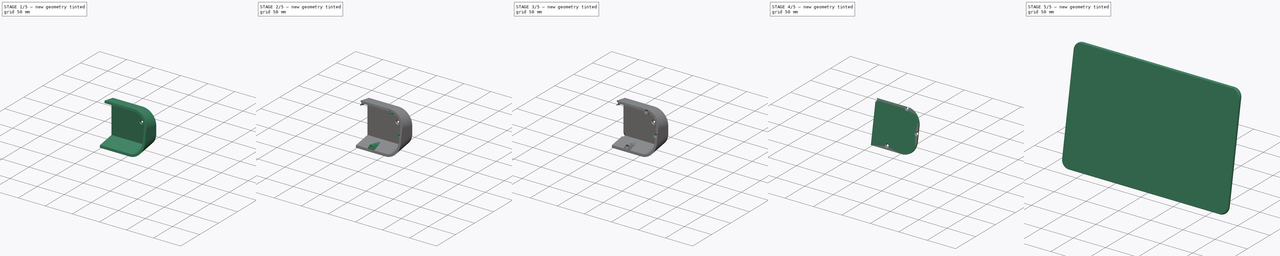
[diagram: build sequence overview — one tinted view per stage of 5, left to right]
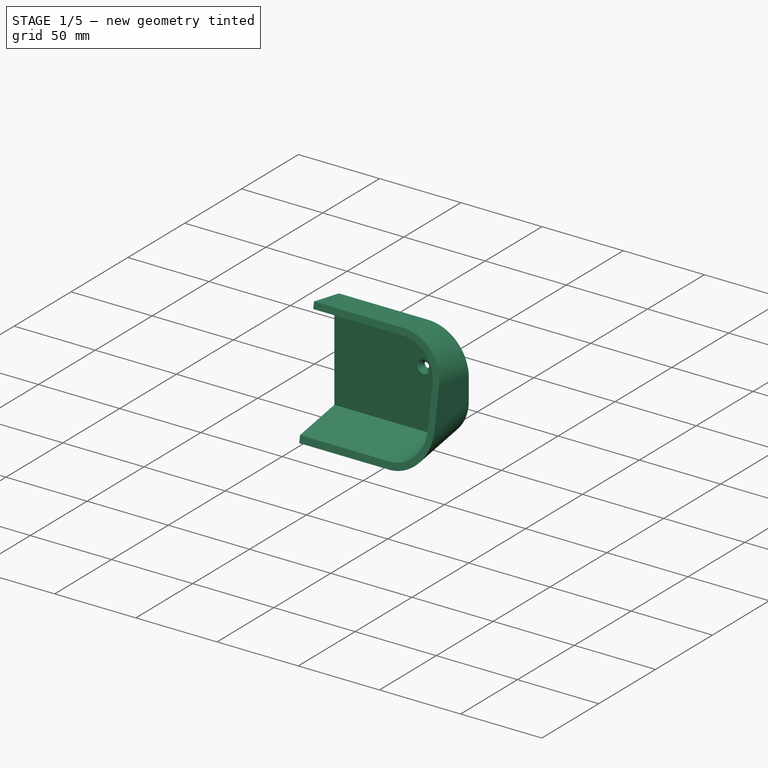
[diagram: stage 1 of 5 — iso view after this stage's code; geometry added in this stage tinted green]
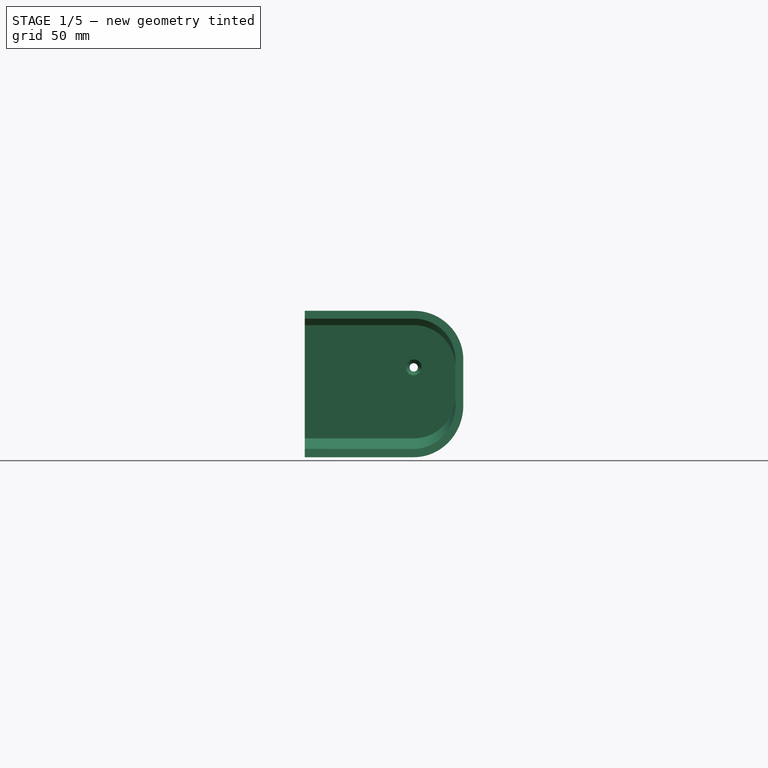
[diagram: stage 1 of 5 — front view after this stage's code; geometry added in this stage tinted green]
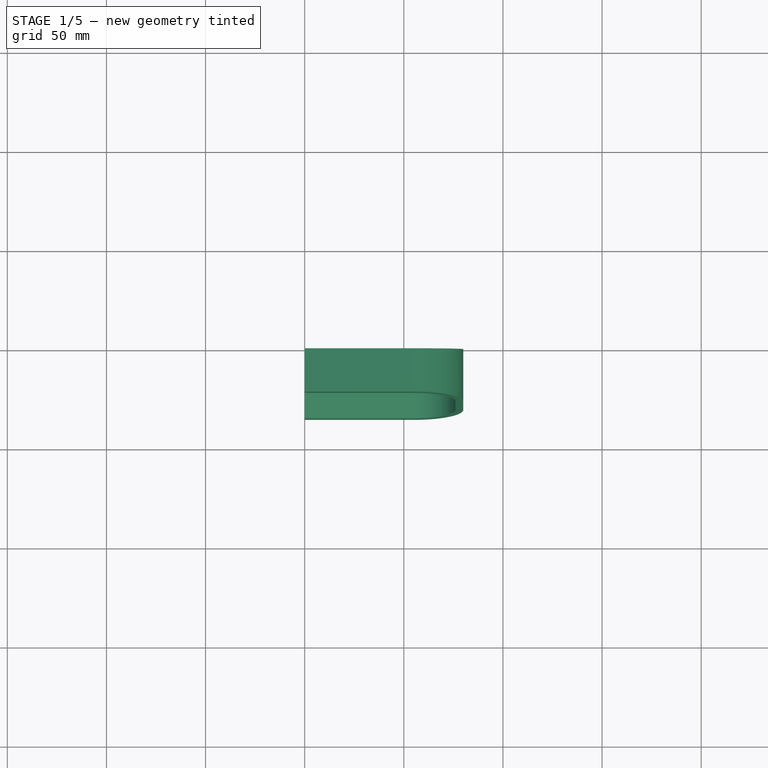
[diagram: stage 1 of 5 — top view after this stage's code; geometry added in this stage tinted green]
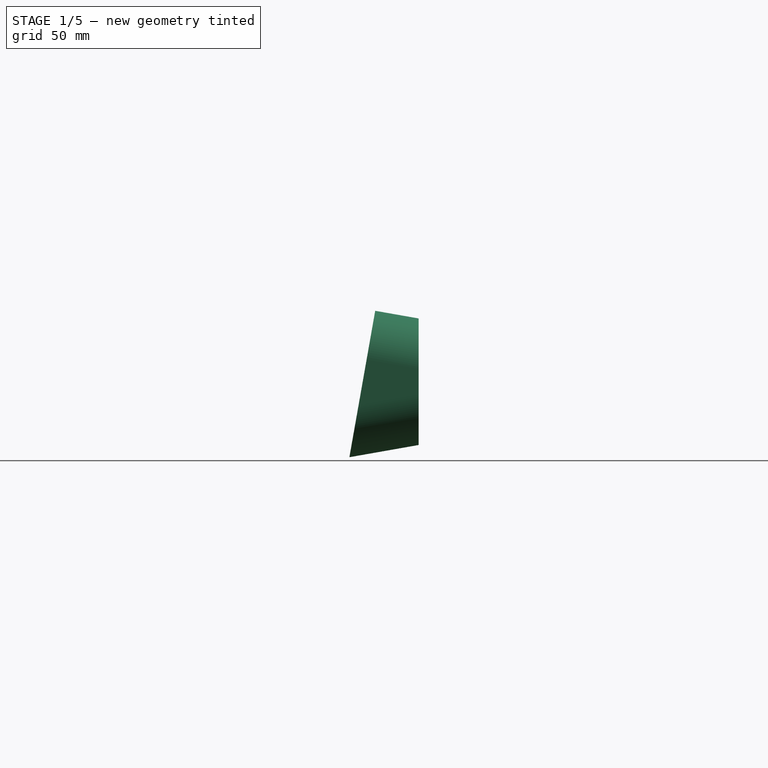
[diagram: stage 1 of 5 — right view after this stage's code; geometry added in this stage tinted green]
FCSTD DOCUMENT  (FreeCAD 0.21R33668 +7 (Git))
Label: wall-mount-proto
License: All rights reserved
LicenseURL: http://en.wikipedia.org/wiki/All_rights_reserved
objects: Sketcher::SketchObject×15, PartDesign::Pocket×6, PartDesign::Pad×4, PartDesign::Hole×4, PartDesign::Fillet×3, PartDesign::SubShapeBinder×3, PartDesign::Mirrored×2, PartDesign::Body×2, Part::FeaturePython×1, PartDesign::Thickness×1, PartDesign::SubtractiveLoft×1, PartDesign::ShapeBinder×1
note: 62 computed .brp shape members not serialized (recipe doc carries the construction recipe); baked Part::Feature solids carry a one-line shape summary decoded from their .brp

FEATURE [Sketcher::SketchObject] Sketch003
  FullyConstrained = true
  MapMode = 5
  Placement = pos=(0,0,0) rot=(0.57735,0.57735,0.57735;2.0944rad)
  Support = -> [YZ_Plane001]
  sketch-geometry (7):
    g0: LineSegment StartX=0 StartY=31.922 StartZ=0 EndX=0 EndY=-31.922 EndZ=0
    g1: LineSegment StartX=0 StartY=-31.922 StartZ=0 EndX=-34.9155 EndY=-38.0785 EndZ=0
    g2: LineSegment StartX=-34.9155 StartY=-38.0785 StartZ=0 EndX=-21.8919 EndY=35.7821 EndZ=0
    g3: LineSegment StartX=-21.8919 StartY=35.7821 StartZ=0 EndX=0 EndY=31.922 EndZ=0
    g4: GeomPoint X=-33.179 Y=-28.2304 Z=0
    g5: GeomPoint X=-8 Y=114.567 Z=0
    g6: GeomPoint X=-37.5202 Y=-52.8506 Z=0
  constraints (18):
    c: PointOnObject(g0,g-2)
    c: Coincident(g1,g0)
    c: Coincident(g2,g1)
    c: Coincident(g3,g2)
    c: Coincident(g3,g0)
    c: Symmetric(g0,g0,g-1)
    c: Angle(g3,g0) = 1.74533
    c: Perpendicular(g3,g2)
    c: PointOnObject(g4,g2)
    c: PointOnObject(g5,g2)
    c: Distance(g5,g4) = 145
    c: Distance(g1,g4) = 10
    c: DistanceX(g5,g-1) = 8
    c: Distance(g2) = 75
    c: Angle(g0,g1) = 1.74533
    c: PointOnObject(g6,g2)
    c: Distance(g5,g6) = 170
    c: Distance(g4,g6) = 25
FEATURE [PartDesign::Pad] Pad
  Direction = (1,-2e-16,3e-16)
  Length = 80
  Length2 = 10
  Placement = pos=(0,0,0) rot=(0.57735,0.57735,0.57735;2.0944rad)
  Profile = -> Sketch003
  ReferenceAxis = -> Sketch003 [N_Axis]
  Type = 0
FEATURE [PartDesign::Fillet] Fillet001
  Base = -> Pad [Edge12,Edge7]
  BaseFeature = -> Pad
  Placement = pos=(0,0,0) rot=(0.57735,0.57735,0.57735;2.0944rad)
  Radius = 25
  SupportTransform = false
  UseAllEdges = false
FEATURE [PartDesign::Thickness] Thickness001
  Base = -> Fillet001 [Face4,Face8]
  BaseFeature = -> Fillet001
  Intersection = false
  Join = 0
  Mode = 0
  Reversed = true
  SupportTransform = false
  Value = 4
FEATURE [Sketcher::SketchObject] Sketch004
  ExternalGeometry = -> [Thickness001]
  FullyConstrained = true
  MapMode = 5
  Placement = pos=(-1.8e-15,-4,9e-16) rot=(1,0,0;1.5708rad)
  Support = -> [Thickness001]
  sketch-geometry (1):
    g0: Circle CenterX=55 CenterY=7.2416 CenterZ=0 NormalX=0 NormalY=0 NormalZ=1 AngleXU=0 Radius=2
  constraints (2):
    c: Coincident(g0,g-3)
    c: Diameter(g0) = 4
FEATURE [PartDesign::Hole] Hole001
  BaseFeature = -> Thickness001
  CustomThreadClearance = 0
  Depth = 218.831
  DepthType = 1
  Diameter = 4.2
  DrillForDepth = false
  DrillPoint = 1
  DrillPointAngle = 118
  HoleCutCountersinkAngle = 90
  HoleCutCustomValues = false
  HoleCutDepth = 0
  HoleCutDiameter = 8
  HoleCutType = 2
  ModelThread = false
  Profile = -> Sketch004
  Tapered = false
  TaperedAngle = 90
  ThreadClass = 0
  ThreadDepth = 218.831
  ThreadDepthType = 0
  ThreadDirection = 0
  ThreadFit = 2
  ThreadSize = 10
  ThreadType = 1
  Threaded = false
  UseCustomThreadClearance = false
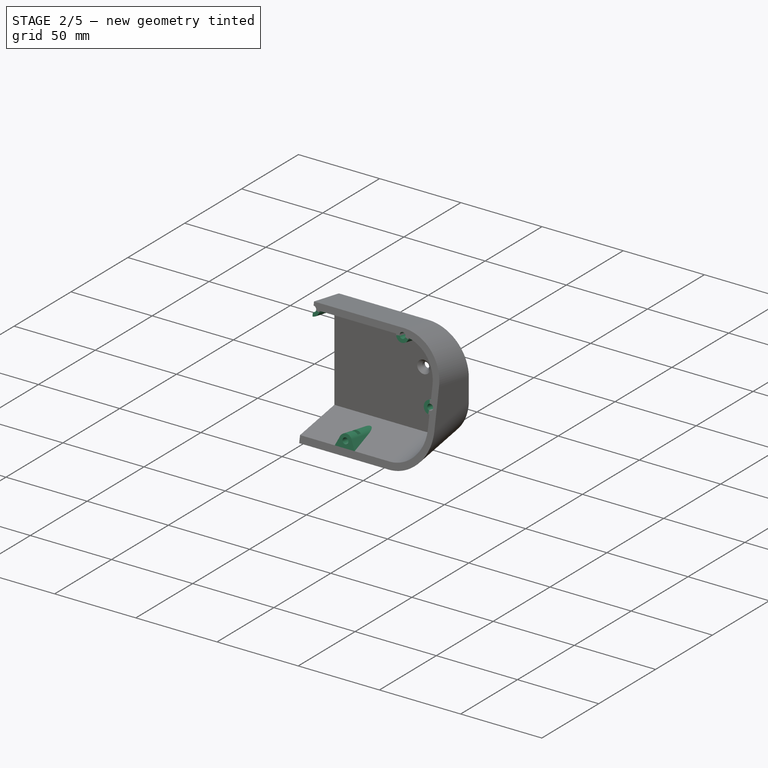
[diagram: stage 2 of 5 — iso view after this stage's code; geometry added in this stage tinted green]
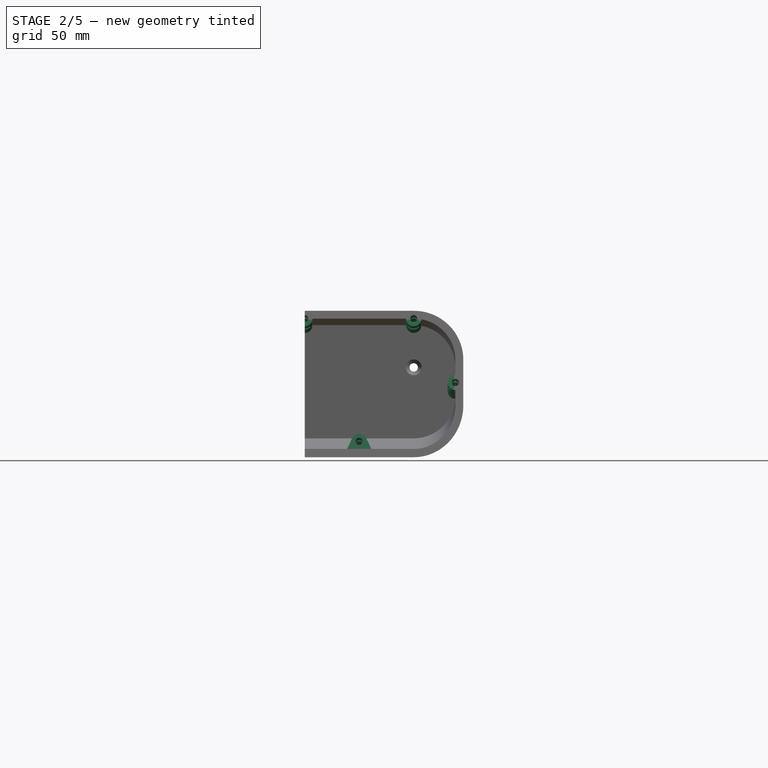
[diagram: stage 2 of 5 — front view after this stage's code; geometry added in this stage tinted green]
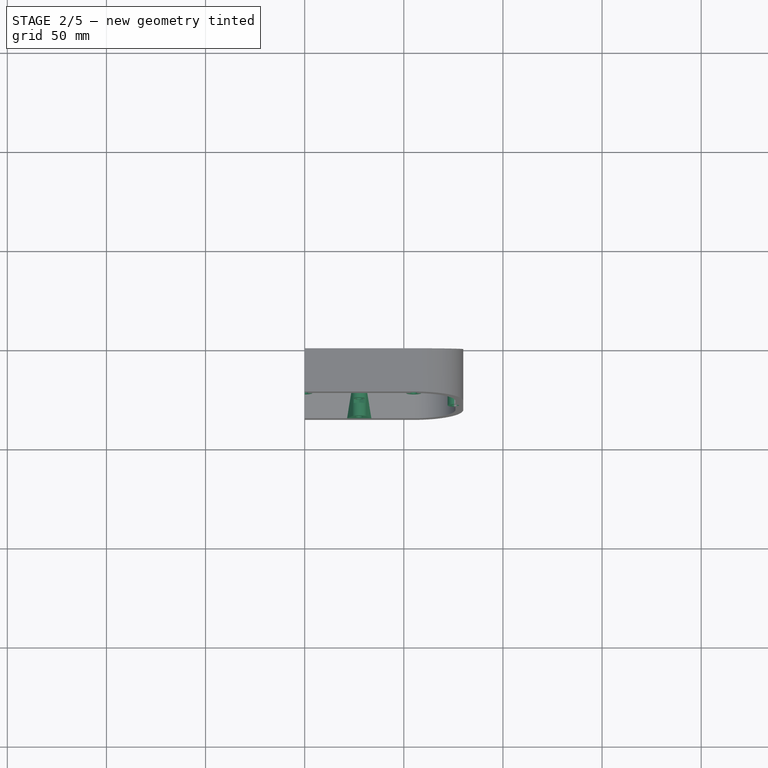
[diagram: stage 2 of 5 — top view after this stage's code; geometry added in this stage tinted green]
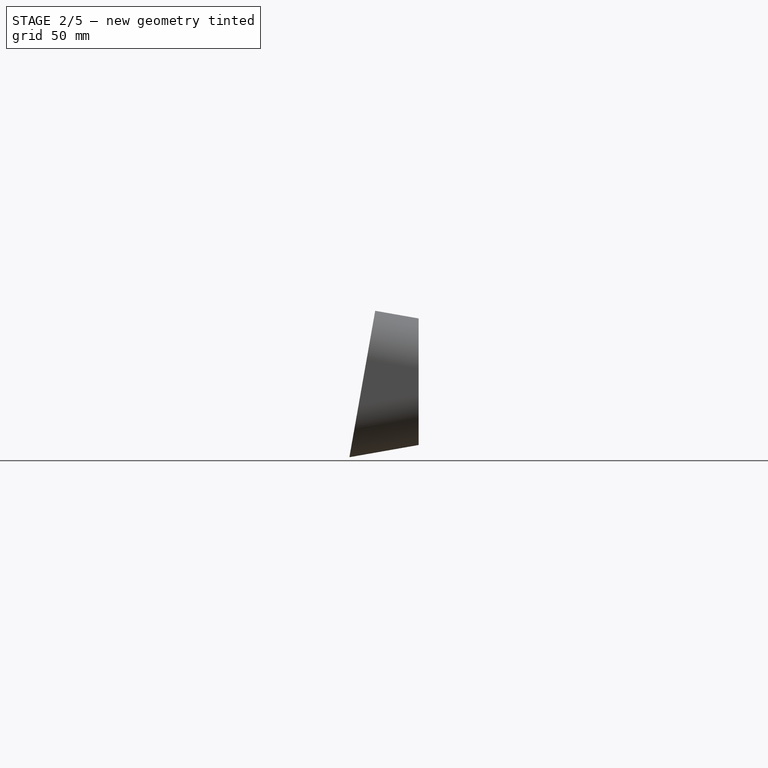
[diagram: stage 2 of 5 — right view after this stage's code; geometry added in this stage tinted green]
FEATURE [Sketcher::SketchObject] Sketch005
  ExternalGeometry = -> [Hole001]
  FullyConstrained = true
  MapMode = 5
  Placement = pos=(-1.36e-14,-27.3508,4.82269) rot=(1,0,0;1.39626rad)
  Support = -> [Hole001]
  sketch-geometry (4):
    g0: ArcOfCircle CenterX=-5.4e-15 CenterY=27.437 CenterZ=0 NormalX=0 NormalY=0 NormalZ=1 AngleXU=0 Radius=3.9 StartAngle=4.71239 EndAngle=7.85398
    g1: Circle CenterX=55 CenterY=27.437 CenterZ=0 NormalX=0 NormalY=0 NormalZ=1 AngleXU=0 Radius=3.9
    g2: Circle CenterX=76 CenterY=-5.26079 CenterZ=0 NormalX=0 NormalY=0 NormalZ=1 AngleXU=0 Radius=3.9
    g3: LineSegment StartX=-7e-16 StartY=31.337 StartZ=0 EndX=8e-16 EndY=23.537 EndZ=0
  constraints (10):
    c: Coincident(g0,g-3)
    c: Coincident(g1,g-4)
    c: Symmetric(g-5,g-5,g2)
    c: Equal(g0,g1)
    c: Equal(g0,g2)
    c: Diameter(g0) = 7.8
    c: PointOnObject(g3,g-2)
    c: PointOnObject(g3,g-2)
    c: Coincident(g0,g3)
    c: Coincident(g0,g3)
FEATURE [PartDesign::Pad] Pad001
  BaseFeature = -> Hole001
  Direction = (-5e-16,-0.984808,0.173648)
  Length = 10
  Length2 = 10
  Profile = -> Sketch005
  ReferenceAxis = -> Sketch005 [N_Axis]
  Refine = true
  Type = 3
  UpToFace = -> Hole001 [Face11]
FEATURE [Sketcher::SketchObject] Sketch010
  ExternalGeometry = -> [Pad001]
  FullyConstrained = true
  MapMode = 5
  Placement = pos=(-1.31e-14,-27.3508,4.82269) rot=(1,0,0;1.39626rad)
  Support = -> [Pad001]
  sketch-geometry (6):
    g0: ArcOfCircle CenterX=27.5 CenterY=-35.4063 CenterZ=0 NormalX=0 NormalY=0 NormalZ=1 AngleXU=0 Radius=3.9 StartAngle=0.436332 EndAngle=2.70526
    g1: LineSegment StartX=2.13e-14 StartY=-39.3063 StartZ=0 EndX=27.5 EndY=-35.4063 EndZ=0
    g2: LineSegment StartX=27.5 StartY=-35.4063 StartZ=0 EndX=55 EndY=-39.3063 EndZ=0
    g3: LineSegment StartX=23.9654 StartY=-33.7581 StartZ=0 EndX=21.3782 EndY=-39.3063 EndZ=0
    g4: LineSegment StartX=31.0346 StartY=-33.7581 StartZ=0 EndX=33.6218 EndY=-39.3063 EndZ=0
    g5: LineSegment StartX=33.6218 StartY=-39.3063 StartZ=0 EndX=21.3782 EndY=-39.3063 EndZ=0
  constraints (15):
    c: Coincident(g1,g-3)
    c: Coincident(g1,g0)
    c: Coincident(g2,g0)
    c: Coincident(g2,g-3)
    c: Equal(g1,g2)
    c: Tangent(g0,g-3)
    c: Equal(g-4,g0)
    c: PointOnObject(g3,g-3)
    c: PointOnObject(g4,g-3)
    c: Coincident(g5,g4)
    c: Coincident(g5,g3)
    c: Tangent(g3,g0) = -1.5708
    c: Tangent(g4,g0) = 1.5708
    c: Angle(g4,g5) = 1.13446
    c: Angle(g5,g3) = 1.13446
FEATURE [PartDesign::Pad] Pad002
  BaseFeature = -> Pad001
  Direction = (-5e-16,-0.984808,0.173648)
  Length = 10
  Length2 = 10
  Profile = -> Sketch010
  ReferenceAxis = -> Sketch010 [N_Axis]
  Reversed = true
  Type = 2
FEATURE [Sketcher::SketchObject] Sketch007
  ExternalGeometry = -> [Pad002]
  FullyConstrained = true
  MapMode = 5
  Placement = pos=(-1.3e-14,-28.2191,4.97578) rot=(1,0,0;1.39626rad)
  sketch-geometry (3):
    g0: Circle CenterX=-9.9e-15 CenterY=27.437 CenterZ=0 NormalX=0 NormalY=0 NormalZ=1 AngleXU=0 Radius=1.8
    g1: Circle CenterX=55 CenterY=27.437 CenterZ=0 NormalX=0 NormalY=0 NormalZ=1 AngleXU=0 Radius=1.8
    g2: Circle CenterX=76 CenterY=-5.26079 CenterZ=0 NormalX=0 NormalY=0 NormalZ=1 AngleXU=0 Radius=1.8
  constraints (6):
    c: Equal(g0,g1)
    c: Equal(g0,g2)
    c: Diameter(g0) = 3.6
    c: Coincident(g1,g-3)
    c: Coincident(g-4,g0)
    c: Coincident(g2,g-5)
FEATURE [PartDesign::Pocket] Pocket
  BaseFeature = -> Pad002
  Direction = (0,0.984808,-0.173648)
  Length = 0
  Length2 = 5
  Profile = -> Sketch007
  ReferenceAxis = -> Sketch007 [N_Axis]
  Type = 3
  UpToFace = -> Pad002 [Face2]
FEATURE [Sketcher::SketchObject] Sketch008
  ExternalGeometry = -> [Pocket]
  FullyConstrained = true
  MapMode = 5
  Placement = pos=(-1.3e-14,-28.2191,4.97578) rot=(1,0,0;1.39626rad)
  sketch-geometry (1):
    g0: Circle CenterX=27.5 CenterY=-35.4063 CenterZ=0 NormalX=0 NormalY=0 NormalZ=1 AngleXU=0 Radius=1.8
  constraints (2):
    c: Coincident(g-3,g0)
    c: Equal(g-4,g0)
FEATURE [PartDesign::Pocket] Pocket001
  BaseFeature = -> Pocket
  Direction = (0,0.984808,-0.173648)
  Length = 0
  Length2 = 5
  Offset = -2
  Profile = -> Sketch008
  ReferenceAxis = -> Sketch008 [N_Axis]
  Type = 3
  UpToFace = -> Pocket [Face16]
FEATURE [Sketcher::SketchObject] Sketch009
  ExternalGeometry = -> [Pocket001]
  FullyConstrained = true
  MapMode = 5
  Placement = pos=(-1.3e-14,-28.2191,4.97578) rot=(1,0,0;1.39626rad)
  sketch-geometry (40):
    g0: LineSegment StartX=2.68468 StartY=28.987 StartZ=0 EndX=-9.8e-15 EndY=30.537 EndZ=0
    g1: LineSegment StartX=-9.8e-15 StartY=30.537 StartZ=0 EndX=-2.68468 EndY=28.987 EndZ=0
    g2: LineSegment StartX=-2.68468 StartY=28.987 StartZ=0 EndX=-2.68468 EndY=25.887 EndZ=0
    g3: LineSegment StartX=-2.68468 StartY=25.887 StartZ=0 EndX=-9.3e-15 EndY=24.337 EndZ=0
    g4: LineSegment StartX=-9.3e-15 StartY=24.337 StartZ=0 EndX=2.68468 EndY=25.887 EndZ=0
    g5: LineSegment StartX=2.68468 StartY=25.887 StartZ=0 EndX=2.68468 EndY=28.987 EndZ=0
    g6: Circle CenterX=-9.9e-15 CenterY=27.437 CenterZ=0 NormalX=0 NormalY=0 NormalZ=1 AngleXU=0 Radius=3.1
    g7: LineSegment StartX=52.3153 StartY=28.987 StartZ=0 EndX=52.3153 EndY=25.887 EndZ=0
    g8: LineSegment StartX=52.3153 StartY=25.887 StartZ=0 EndX=55 EndY=24.337 EndZ=0
    g9: LineSegment StartX=55 StartY=24.337 StartZ=0 EndX=57.6847 EndY=25.887 EndZ=0
    g10: LineSegment StartX=57.6847 StartY=25.887 StartZ=0 EndX=57.6847 EndY=28.987 EndZ=0
    g11: LineSegment StartX=57.6847 StartY=28.987 StartZ=0 EndX=55 EndY=30.537 EndZ=0
    g12: LineSegment StartX=55 StartY=30.537 StartZ=0 EndX=52.3153 EndY=28.987 EndZ=0
    g13: Circle CenterX=55 CenterY=27.437 CenterZ=0 NormalX=0 NormalY=0 NormalZ=1 AngleXU=0 Radius=3.1
    g14: LineSegment StartX=79.1 StartY=-5.26079 StartZ=0 EndX=77.55 EndY=-2.57611 EndZ=0
    g15: LineSegment StartX=77.55 StartY=-2.57611 StartZ=0 EndX=74.45 EndY=-2.57611 EndZ=0
    g16: LineSegment StartX=74.45 StartY=-2.57611 StartZ=0 EndX=72.9 EndY=-5.26079 EndZ=0
    g17: LineSegment StartX=72.9 StartY=-5.26079 StartZ=0 EndX=74.45 EndY=-7.94546 EndZ=0
    g18: LineSegment StartX=74.45 StartY=-7.94546 StartZ=0 EndX=77.55 EndY=-7.94546 EndZ=0
    g19: LineSegment StartX=77.55 StartY=-7.94546 StartZ=0 EndX=79.1 EndY=-5.26079 EndZ=0
    g20: Circle CenterX=76 CenterY=-5.26079 CenterZ=0 NormalX=0 NormalY=0 NormalZ=1 AngleXU=0 Radius=3.1
    g21: LineSegment StartX=30.1847 StartY=-33.8563 StartZ=0 EndX=27.5 EndY=-32.3063 EndZ=0
    g22: LineSegment StartX=27.5 StartY=-32.3063 StartZ=0 EndX=24.8153 EndY=-33.8563 EndZ=0
    g23: LineSegment StartX=24.8153 StartY=-33.8563 StartZ=0 EndX=24.8153 EndY=-36.9563 EndZ=0
    g24: LineSegment StartX=24.8153 StartY=-36.9563 StartZ=0 EndX=27.5 EndY=-38.5063 EndZ=0
    g25: LineSegment StartX=27.5 StartY=-38.5063 StartZ=0 EndX=30.1847 EndY=-36.9563 EndZ=0
    g26: LineSegment StartX=30.1847 StartY=-36.9563 StartZ=0 EndX=30.1847 EndY=-33.8563 EndZ=0
    g27: Circle CenterX=27.5 CenterY=-35.4063 CenterZ=0 NormalX=0 NormalY=0 NormalZ=1 AngleXU=0 Radius=3.1
    g28: LineSegment StartX=52.3153 StartY=28.987 StartZ=0 EndX=52.3153 EndY=18.987 EndZ=0
    g29: LineSegment StartX=57.6847 StartY=28.987 StartZ=0 EndX=57.6847 EndY=18.987 EndZ=0
    g30: LineSegment StartX=52.3153 StartY=18.987 StartZ=0 EndX=57.6847 EndY=18.987 EndZ=0
    g31: LineSegment StartX=2.68468 StartY=28.987 StartZ=0 EndX=2.68468 EndY=18.987 EndZ=0
    g32: LineSegment StartX=-2.68468 StartY=28.987 StartZ=0 EndX=-2.68468 EndY=18.987 EndZ=0
    g33: LineSegment StartX=-2.68468 StartY=18.987 StartZ=0 EndX=2.68468 EndY=18.987 EndZ=0
    g34: LineSegment StartX=24.8153 StartY=-36.9563 StartZ=0 EndX=24.8153 EndY=-26.9563 EndZ=0
    g35: LineSegment StartX=24.8153 StartY=-26.9563 StartZ=0 EndX=30.1847 EndY=-26.9563 EndZ=0
    g36: LineSegment StartX=30.1847 StartY=-36.9563 StartZ=0 EndX=30.1847 EndY=-26.9563 EndZ=0
    g37: LineSegment StartX=77.55 StartY=-2.57611 StartZ=0 EndX=67.55 EndY=-2.57611 EndZ=0
    g38: LineSegment StartX=67.55 StartY=-2.57611 StartZ=0 EndX=67.55 EndY=-7.94546 EndZ=0
    g39: LineSegment StartX=67.55 StartY=-7.94546 StartZ=0 EndX=77.55 EndY=-7.94546 EndZ=0
  constraints (96):
    c: Coincident(g0,g1)
    c: Coincident(g1,g2)
    c: Coincident(g2,g3)
    c: Coincident(g3,g4)
    c: Coincident(g4,g5)
    c: Coincident(g5,g0)
    c: Equal(g0, g1-g5) x5
    c: PointOnObject(g0,g6)
    c: PointOnObject(g1,g6)
    c: PointOnObject(g2,g6)
    c: PointOnObject(g3,g6)
    c: PointOnObject(g4,g6)
    c: PointOnObject(g5,g6)
    c: Coincident(g7,g8)
    c: Coincident(g8,g9)
    c: Coincident(g9,g10)
    c: Coincident(g10,g11)
    c: Coincident(g11,g12)
    c: Coincident(g12,g7)
    c: Equal(g7, g8-g12) x5
    c: PointOnObject(g7,g13)
    c: PointOnObject(g8,g13)
    c: PointOnObject(g9,g13)
    c: PointOnObject(g10,g13)
    c: PointOnObject(g11,g13)
    c: PointOnObject(g12,g13)
    c: Coincident(g14,g15)
    c: Coincident(g15,g16)
    c: Coincident(g16,g17)
    c: Coincident(g17,g18)
    c: Coincident(g18,g19)
    c: Coincident(g19,g14)
    c: Equal(g14, g15-g19) x5
    c: PointOnObject(g14,g20)
    c: PointOnObject(g15,g20)
    c: PointOnObject(g16,g20)
    c: PointOnObject(g17,g20)
    c: PointOnObject(g18,g20)
    c: PointOnObject(g19,g20)
    c: Coincident(g21,g22)
    c: Coincident(g22,g23)
    c: Coincident(g23,g24)
    c: Coincident(g24,g25)
    c: Coincident(g25,g26)
    c: Coincident(g26,g21)
    c: Equal(g21, g22-g26) x5
    c: PointOnObject(g21,g27)
    c: PointOnObject(g22,g27)
    c: PointOnObject(g23,g27)
    c: PointOnObject(g24,g27)
    c: PointOnObject(g25,g27)
    c: PointOnObject(g26,g27)
    c: Equal(g27,g20)
    c: Equal(g27,g13)
    c: Equal(g27,g6)
    c: Diameter(g27) = 6.2
    c: Vertical(g5)
    c: Vertical(g7)
    c: Horizontal(g15)
    c: Vertical(g26)
    c: Coincident(g28,g7)
    c: Coincident(g29,g10)
    c: Coincident(g30,g28)
    c: Coincident(g30,g29)
    c: PointOnObject(g9,g29)
    c: PointOnObject(g7,g28)
    c: Coincident(g31,g0)
    c: Coincident(g32,g1)
    c: Coincident(g33,g32)
    c: Coincident(g33,g31)
    c: Horizontal(g33)
    c: PointOnObject(g2,g32)
    c: PointOnObject(g4,g31)
    c: Coincident(g34,g23)
    c: Coincident(g35,g34)
    c: Horizontal(g35)
    c: Coincident(g36,g25)
    c: Coincident(g36,g35)
    c: PointOnObject(g21,g36)
    c: PointOnObject(g22,g34)
    c: Coincident(g37,g14)
    c: Coincident(g38,g37)
    c: Vertical(g38)
    c: Coincident(g39,g38)
    c: Coincident(g39,g18)
    c: PointOnObject(g17,g39)
    c: PointOnObject(g15,g37)
    c: Horizontal(g30)
    c: Equal(g31,g29)
    c: Equal(g29,g39)
    c: Equal(g39,g36)
    c: Distance(g31) = 10
    c: Coincident(g-6,g27)
    c: Coincident(g20,g-5)
    c: Coincident(g13,g-4)
    c: Coincident(g6,g-3)
FEATURE [PartDesign::Pocket] Pocket002
  BaseFeature = -> Pocket001
  Direction = (0,0.984808,-0.173648)
  Length = 10.2
  Length2 = -7.4
  Profile = -> Sketch009
  ReferenceAxis = -> Sketch009 [N_Axis]
  Type = 4
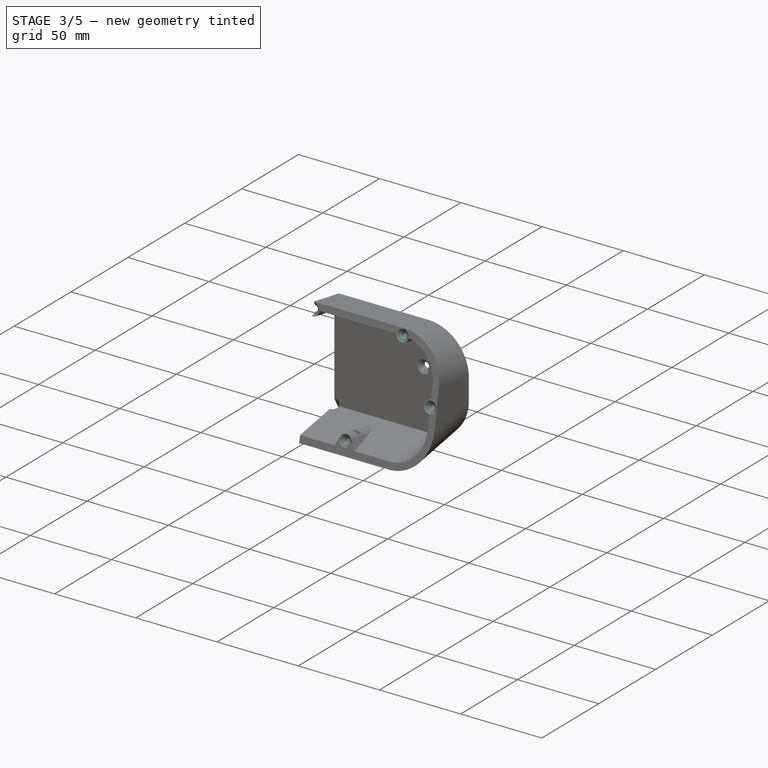
[diagram: stage 3 of 5 — iso view after this stage's code; geometry added in this stage tinted green]
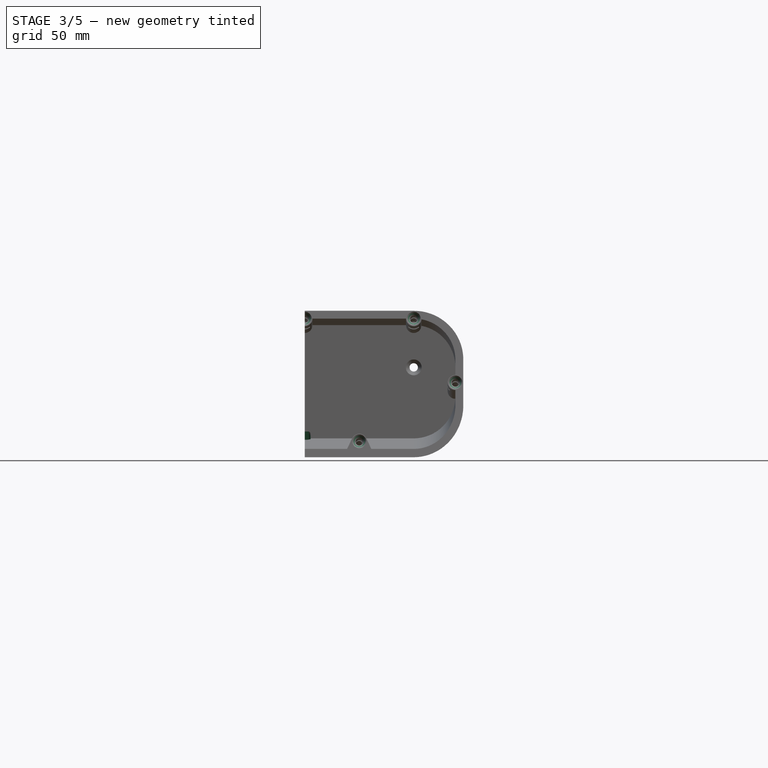
[diagram: stage 3 of 5 — front view after this stage's code; geometry added in this stage tinted green]
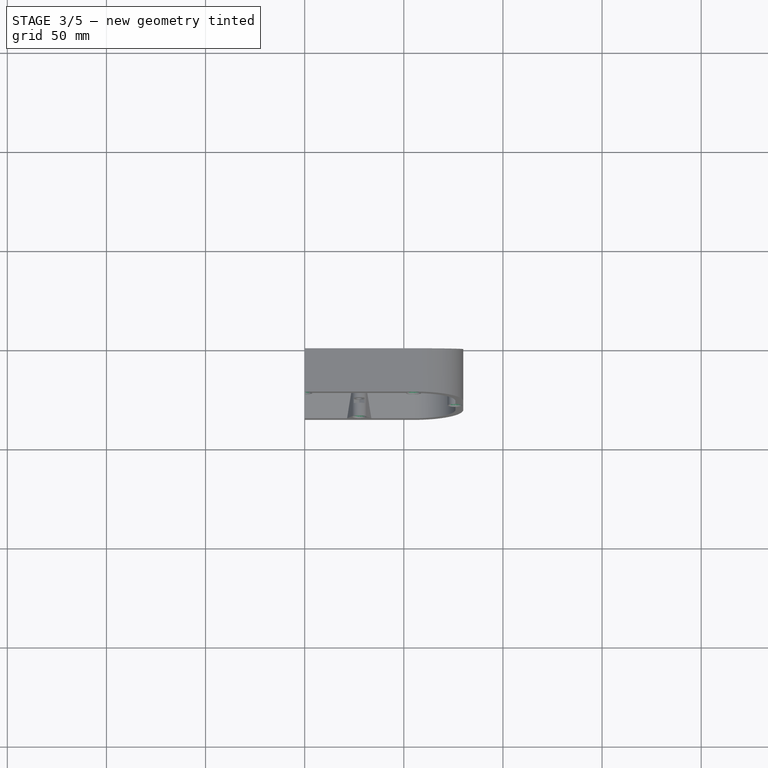
[diagram: stage 3 of 5 — top view after this stage's code; geometry added in this stage tinted green]
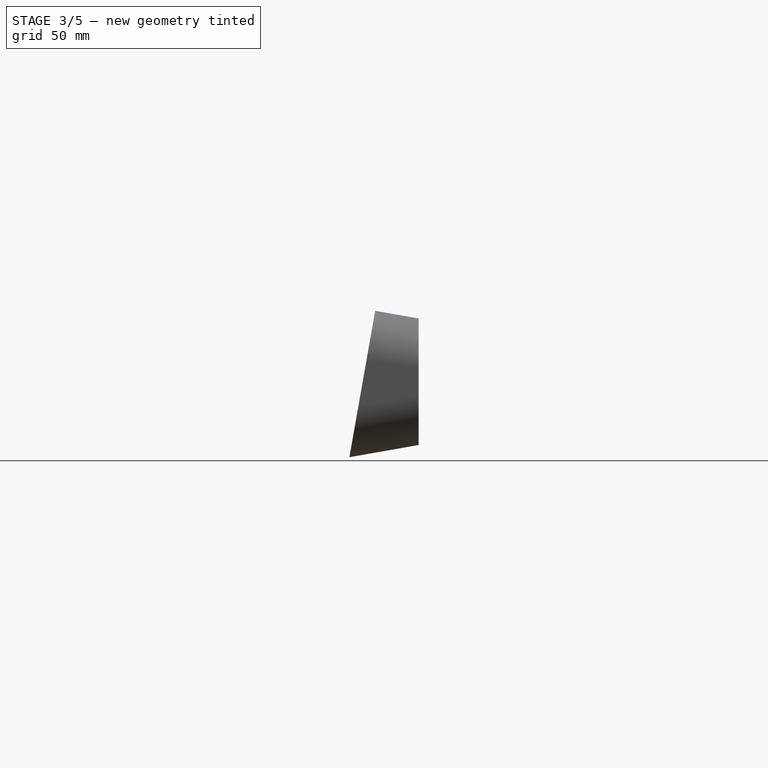
[diagram: stage 3 of 5 — right view after this stage's code; geometry added in this stage tinted green]
FEATURE [Sketcher::SketchObject] Sketch011
  AttachmentOffset = pos=(0,0,5) rot=(0,0,1;0rad)
  ExternalGeometry = -> [Pocket002]
  FullyConstrained = true
  MapMode = 5
  Placement = pos=(7.9e-15,3.89614,-22.0961) rot=(1,0,0;0.174533rad)
  Support = -> [Pocket002]
  sketch-geometry (4):
    g0: ArcOfCircle CenterX=0 CenterY=-11.8996 CenterZ=0 NormalX=0 NormalY=0 NormalZ=1 AngleXU=0 Radius=3 StartAngle=4.71239 EndAngle=6.28319
    g1: LineSegment StartX=3 StartY=-11.8996 StartZ=0 EndX=3 EndY=-8.89959 EndZ=0
    g2: LineSegment StartX=0 StartY=-8.89959 StartZ=0 EndX=3 EndY=-8.89959 EndZ=0
    g3: LineSegment StartX=0 StartY=-8.89959 StartZ=0 EndX=-6e-16 EndY=-14.8996 EndZ=0
  constraints (11):
    c: PointOnObject(g0,g-2)
    c: Tangent(g0,g-3)
    c: PointOnObject(g1,g-3)
    c: Vertical(g1)
    c: Tangent(g1,g0) = -1.5708
    c: Coincident(g2,g-3)
    c: Coincident(g2,g1)
    c: Coincident(g3,g2)
    c: Coincident(g3,g0)
    c: PointOnObject(g0,g-2)
    c: Diameter(g0) = 6
FEATURE [Sketcher::SketchObject] Sketch012
  ExternalGeometry = -> [Pocket002]
  FullyConstrained = true
  MapMode = 5
  Placement = pos=(1.1e-14,5.45898,-30.9594) rot=(1,0,0;3.31613rad)
  Support = -> [Pocket002]
  sketch-geometry (4):
    g0: ArcOfCircle CenterX=0 CenterY=8.54319 CenterZ=0 NormalX=0 NormalY=0 NormalZ=1 AngleXU=0 Radius=3 StartAngle=0 EndAngle=1.5708
    g1: LineSegment StartX=3 StartY=8.54319 StartZ=0 EndX=3 EndY=5.54319 EndZ=0
    g2: LineSegment StartX=2e-16 StartY=5.54319 StartZ=0 EndX=2e-16 EndY=11.5432 EndZ=0
    g3: LineSegment StartX=2e-16 StartY=5.54319 StartZ=0 EndX=3 EndY=5.54319 EndZ=0
  constraints (11):
    c: PointOnObject(g0,g-2)
    c: PointOnObject(g0,g-2)
    c: PointOnObject(g1,g-3)
    c: Vertical(g1)
    c: Coincident(g2,g-3)
    c: Coincident(g2,g0)
    c: Coincident(g3,g2)
    c: Coincident(g3,g1)
    c: Diameter(g0) = 6
    c: Tangent(g1,g0) = 1.5708
    c: Tangent(g0,g3)
FEATURE [PartDesign::SubtractiveLoft] SubtractiveLoft
  BaseFeature = -> Pocket002
  Closed = false
  Profile = -> Sketch011
  Refine = true
  Ruled = false
  Sections = -> [Sketch012]
FEATURE [PartDesign::Fillet] Fillet002
  Base = -> SubtractiveLoft [Edge24]
  BaseFeature = -> SubtractiveLoft
  Radius = 1
  SupportTransform = false
  UseAllEdges = false
FEATURE [PartDesign::Hole] Hole003
  BaseFeature = -> Fillet002
  CustomThreadClearance = 0
  Depth = 3.1
  DepthType = 0
  Diameter = 3.6
  DrillForDepth = false
  DrillPoint = 1
  DrillPointAngle = 118
  HoleCutCountersinkAngle = 90
  HoleCutCustomValues = false
  HoleCutDepth = 0
  HoleCutDiameter = 7
  HoleCutType = 2
  ModelThread = false
  Profile = -> Fillet002 [Edge95,Edge96,Edge97]
  Reversed = true
  Tapered = false
  TaperedAngle = 90
  ThreadClass = 0
  ThreadDepth = 3.1
  ThreadDepthType = 0
  ThreadDirection = 0
  ThreadFit = 2
  ThreadSize = 9
  ThreadType = 1
  Threaded = false
  UseCustomThreadClearance = false
FEATURE [Sketcher::SketchObject] Sketch014
  ExternalGeometry = -> [Hole003]
  FullyConstrained = true
  MapMode = 5
  Placement = pos=(-1.31e-14,-27.3508,4.82269) rot=(1,0,0;1.39626rad)
  Support = -> [Hole003]
  sketch-geometry (1):
    g0: Circle CenterX=-9.5e-15 CenterY=27.437 CenterZ=0 NormalX=0 NormalY=0 NormalZ=1 AngleXU=0 Radius=1.8
  constraints (2):
    c: Coincident(g0,g-3)
    c: Equal(g0,g-3)
FEATURE [PartDesign::Hole] Hole004
  BaseFeature = -> Hole003
  CustomThreadClearance = 0
  Depth = 3.1
  DepthType = 0
  Diameter = 3.6
  DrillForDepth = false
  DrillPoint = 1
  DrillPointAngle = 118
  HoleCutCountersinkAngle = 90
  HoleCutCustomValues = false
  HoleCutDepth = 0
  HoleCutDiameter = 7
  HoleCutType = 2
  ModelThread = false
  Profile = -> Sketch014
  Tapered = false
  TaperedAngle = 90
  ThreadClass = 0
  ThreadDepth = 3.1
  ThreadDepthType = 0
  ThreadDirection = 0
  ThreadFit = 2
  ThreadSize = 9
  ThreadType = 1
  Threaded = false
  UseCustomThreadClearance = false
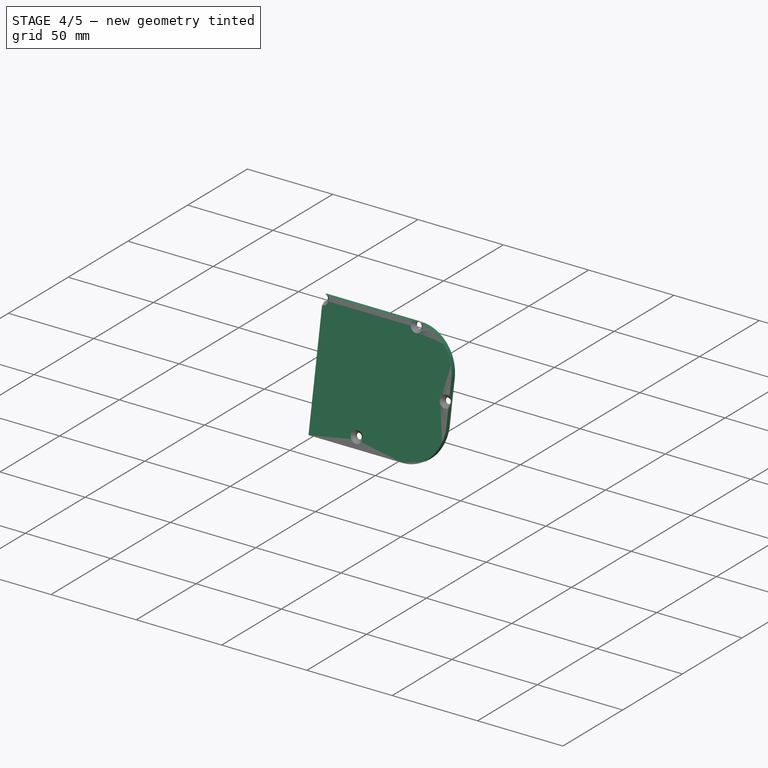
[diagram: stage 4 of 5 — iso view after this stage's code; geometry added in this stage tinted green]
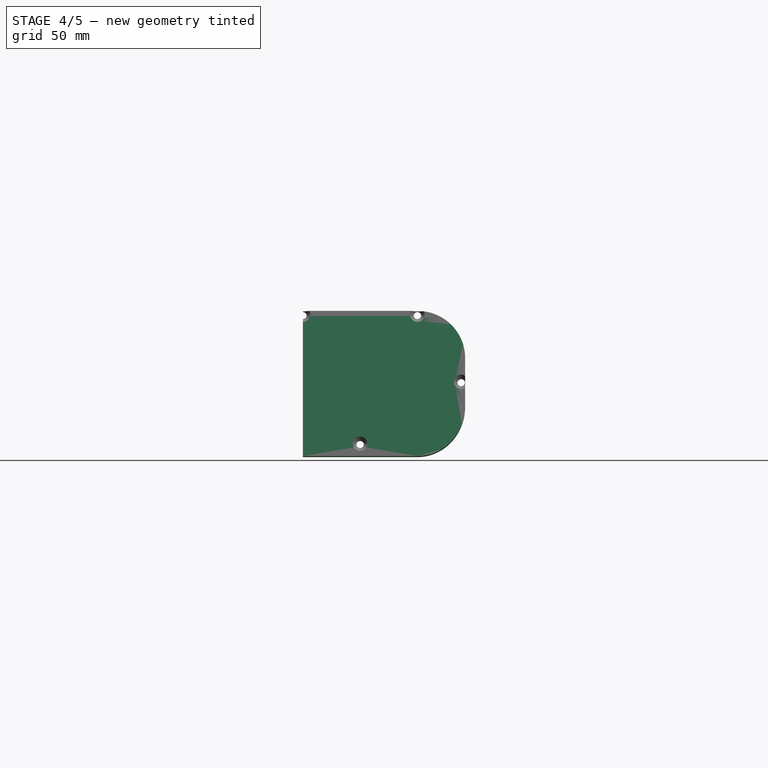
[diagram: stage 4 of 5 — front view after this stage's code; geometry added in this stage tinted green]
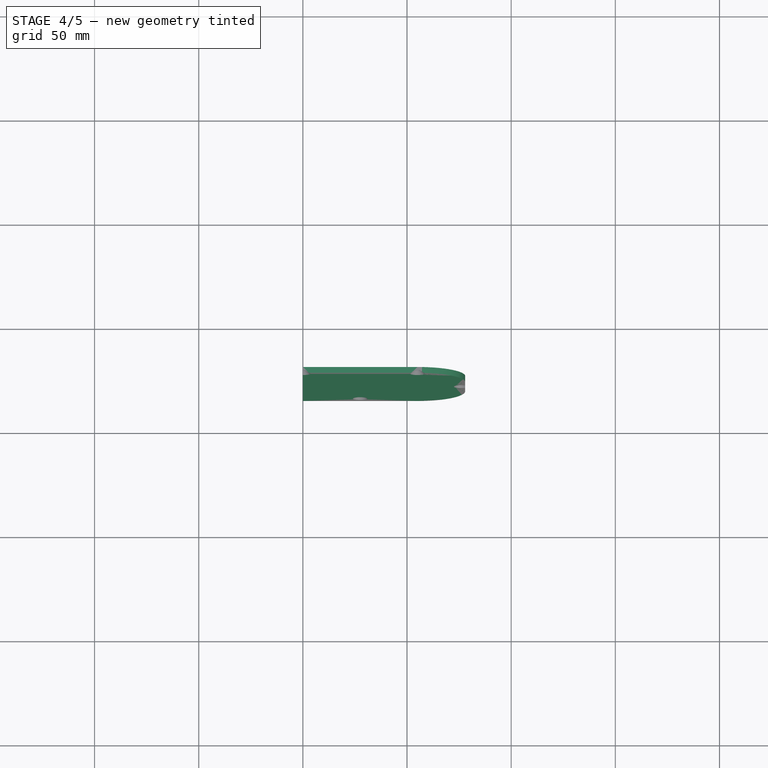
[diagram: stage 4 of 5 — top view after this stage's code; geometry added in this stage tinted green]
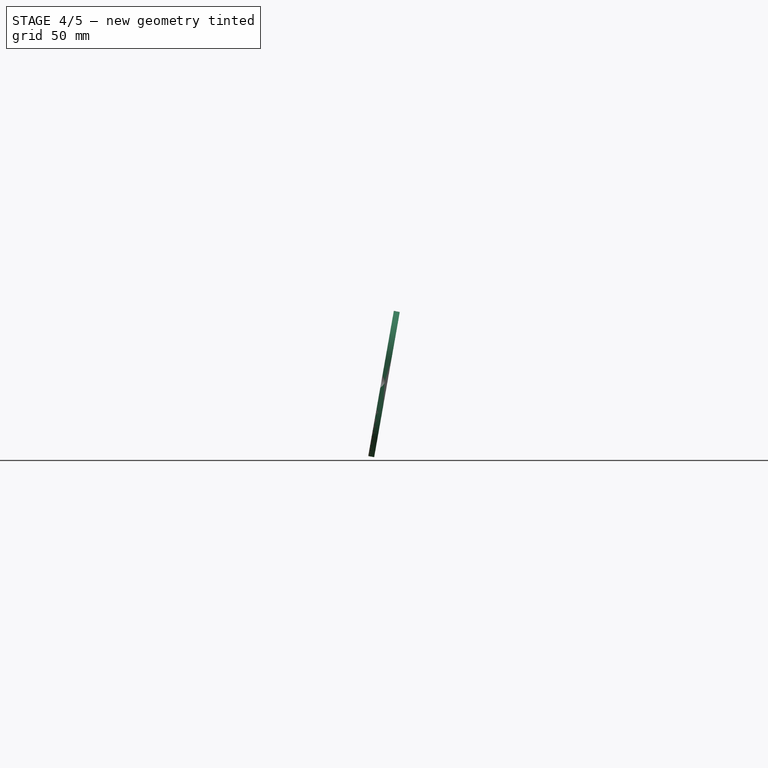
[diagram: stage 4 of 5 — right view after this stage's code; geometry added in this stage tinted green]
FEATURE [Sketcher::SketchObject] Sketch015
  ExternalGeometry = -> [Hole004]
  FullyConstrained = true
  MapMode = 5
  Placement = pos=(-1.31e-14,-27.3508,4.82269) rot=(1,0,0;1.39626rad)
  Support = -> [Hole004]
  sketch-geometry (3):
    g0: LineSegment StartX=-1.9 StartY=31.437 StartZ=0 EndX=-1.9 EndY=-43.563 EndZ=0
    g1: LineSegment StartX=-1.9 StartY=31.437 StartZ=0 EndX=-7.3e-15 EndY=31.437 EndZ=0
    g2: LineSegment StartX=-1.9 StartY=-43.563 StartZ=0 EndX=0 EndY=-43.563 EndZ=0
  constraints (8):
    c: Vertical(g0)
    c: PointOnObject(g0,g-3)
    c: Coincident(g1,g0)
    c: Coincident(g2,g0)
    c: Coincident(g2,g-3)
    c: DistanceX(g1,g1) = 1.9
    c: Coincident(g1,g-4)
    c: PointOnObject(g0,g-4)
FEATURE [PartDesign::SubShapeBinder] Binder002
  BindCopyOnChange = 0
  BindMode = 0
  ClaimChildren = false
  Context = -> Body002 [Binder002.]
  Fuse = false
  MakeFace = true
  OffsetFill = false
  OffsetIntersection = false
  OffsetJoinType = 0
  OffsetOpenResult = false
  PartialLoad = false
  Relative = true
  Support = -> [Body001[Fillet003.Edge90,Fillet003.Edge91,Fillet003.Edge107,Fillet003.Edge106,Fillet003.Edge105]]
  _Version = 2
FEATURE [PartDesign::SubShapeBinder] Binder003
  BindCopyOnChange = 0
  BindMode = 0
  ClaimChildren = false
  Context = -> Body001 [Binder003.]
  Fuse = false
  MakeFace = true
  Offset = -1.9
  OffsetFill = false
  OffsetIntersection = false
  OffsetJoinType = 0
  OffsetOpenResult = false
  PartialLoad = false
  Relative = true
  Support = -> [Hole004[Edge82,Edge95,Edge94,Edge93,Edge92],Sketch015[Edge2,Edge1,Edge3]]
  _Version = 2
FEATURE [PartDesign::Pocket] Pocket003
  BaseFeature = -> Hole004
  Direction = (-5e-16,-0.984808,0.173648)
  Length = 3.1
  Length2 = 5
  Profile = -> Binder003
  Reversed = true
  Type = 0
FEATURE [PartDesign::Fillet] Fillet003
  Base = -> Pocket003 [Edge51,Edge55,Edge46,Edge47,Edge48,Edge63,Edge64,Edge57,Edge38]
  BaseFeature = -> Pocket003
  Radius = 1.5
  SupportTransform = false
  UseAllEdges = false
FEATURE [PartDesign::ShapeBinder] ShapeBinder
  Placement = pos=(0,0,0) rot=(0.57735,0.57735,0.57735;2.0944rad)
  Support = -> [Fillet003]
  TraceSupport = false
FEATURE [Sketcher::SketchObject] Sketch019
  ExternalGeometry = -> [Fillet003]
  FullyConstrained = true
  MapMode = 5
  Placement = pos=(-1.11e-14,-24.2979,4.28438) rot=(1,0,0;1.39626rad)
  Support = -> [Fillet003]
  sketch-geometry (3):
    g0: LineSegment StartX=-1.08e-14 StartY=29.537 StartZ=0 EndX=-0.2 EndY=29.537 EndZ=0
    g1: LineSegment StartX=-0.2 StartY=29.537 StartZ=0 EndX=-0.2 EndY=-41.663 EndZ=0
    g2: LineSegment StartX=-0.2 StartY=-41.663 StartZ=0 EndX=0 EndY=-41.663 EndZ=0
  constraints (8):
    c: Coincident(g0,g-3)
    c: Coincident(g1,g0)
    c: Vertical(g1)
    c: Coincident(g2,g1)
    c: Coincident(g2,g-4)
    c: PointOnObject(g1,g-4)
    c: PointOnObject(g0,g-3)
    c: DistanceX(g0,g0) = 0.2
FEATURE [PartDesign::SubShapeBinder] Binder
  BindCopyOnChange = 0
  BindMode = 0
  ClaimChildren = false
  Context = -> Body002 [Binder.]
  Fuse = false
  MakeFace = true
  Offset = -0.2
  OffsetFill = false
  OffsetIntersection = false
  OffsetJoinType = 0
  OffsetOpenResult = false
  PartialLoad = false
  Placement = pos=(0,-0.1,0) rot=(0,0,1;0rad)
  Relative = true
  Support = -> [Fillet003[Edge92,Edge93,Edge94,Edge95,Edge96],Sketch019[Edge1,Edge2,Edge3]]
  _Version = 2
FEATURE [PartDesign::Pad] Pad004
  Direction = (5e-16,0.984808,-0.173648)
  Length = 2.9
  Length2 = 10
  Placement = pos=(0,-0.1,0) rot=(0,0,1;0rad)
  Profile = -> Binder [Face1]
  Refine = true
  Reversed = true
  Type = 0
FEATURE [Sketcher::SketchObject] Sketch020
  ExternalGeometry = -> [Binder002]
  FullyConstrained = true
  MapMode = 5
  Placement = pos=(-1.27e-14,-27.2539,4.78796) rot=(1,0,0;1.39626rad)
  Support = -> [Pad004]
  sketch-geometry (4):
    g0: Circle CenterX=0 CenterY=27.4544 CenterZ=0 NormalX=0 NormalY=0 NormalZ=1 AngleXU=0 Radius=1.8
    g1: Circle CenterX=55 CenterY=27.4544 CenterZ=0 NormalX=0 NormalY=0 NormalZ=1 AngleXU=0 Radius=1.8
    g2: Circle CenterX=76 CenterY=-5.24342 CenterZ=0 NormalX=0 NormalY=0 NormalZ=1 AngleXU=0 Radius=1.8
    g3: Circle CenterX=27.5 CenterY=-35.3889 CenterZ=0 NormalX=0 NormalY=0 NormalZ=1 AngleXU=0 Radius=1.8
  constraints (8):
    c: Coincident(g0,g-4)
    c: Tangent(g0,g-4)
    c: Coincident(g1,g-3)
    c: Tangent(g1,g-3)
    c: Coincident(g2,g-5)
    c: Tangent(g2,g-5)
    c: Coincident(g3,g-6)
    c: Tangent(g3,g-6)
FEATURE [PartDesign::Hole] Hole005
  BaseFeature = -> Pad004
  CustomThreadClearance = 0
  Depth = 203.835
  DepthType = 1
  Diameter = 3.6
  DrillForDepth = false
  DrillPoint = 1
  DrillPointAngle = 118
  HoleCutCountersinkAngle = 90
  HoleCutCustomValues = false
  HoleCutDepth = 0
  HoleCutDiameter = 7
  HoleCutType = 2
  ModelThread = false
  Placement = pos=(0,-0.1,0) rot=(0,0,1;0rad)
  Profile = -> Sketch020
  Tapered = false
  TaperedAngle = 90
  ThreadClass = 0
  ThreadDepth = 203.835
  ThreadDepthType = 0
  ThreadDirection = 0
  ThreadFit = 2
  ThreadSize = 9
  ThreadType = 1
  Threaded = false
  UseCustomThreadClearance = false
FEATURE [PartDesign::Body] Body002  label="Face Plate"
  Group = -> [Binder,Pad004,Binder002,Sketch020,Hole005,ShapeBinder,Sketch018,Pocket004,Sketch,Pocket005,Mirrored]
  Origin = -> Origin002
  Tip = -> Mirrored
FEATURE [PartDesign::Mirrored] Mirrored001
  BaseFeature = -> Fillet003
  MirrorPlane = -> Fillet003 [Face4]
  Originals = -> [Pad,Fillet001,Thickness001,Hole001,Pad001,Pad002,Pocket,Pocket001,Pocket002,SubtractiveLoft,Hole003,Hole004,Pocket003,Fillet003,Fillet002]
  Refine = true
FEATURE [PartDesign::Body] Body001  label="Base"
  Group = -> [Sketch003,Pad,Fillet001,Thickness001,Sketch004,Hole001,Sketch005,Pad001,Sketch010,Pad002,Sketch007,Pocket,Sketch008,Pocket001,Sketch009,Pocket002,Sketch011,Sketch012,SubtractiveLoft,Fillet002,Hole003,Sketch014,Hole004,Sketch015,Binder003,Pocket003,Fillet003,Sketch019,Mirrored001]
  Origin = -> Origin001
  Tip = -> Mirrored001
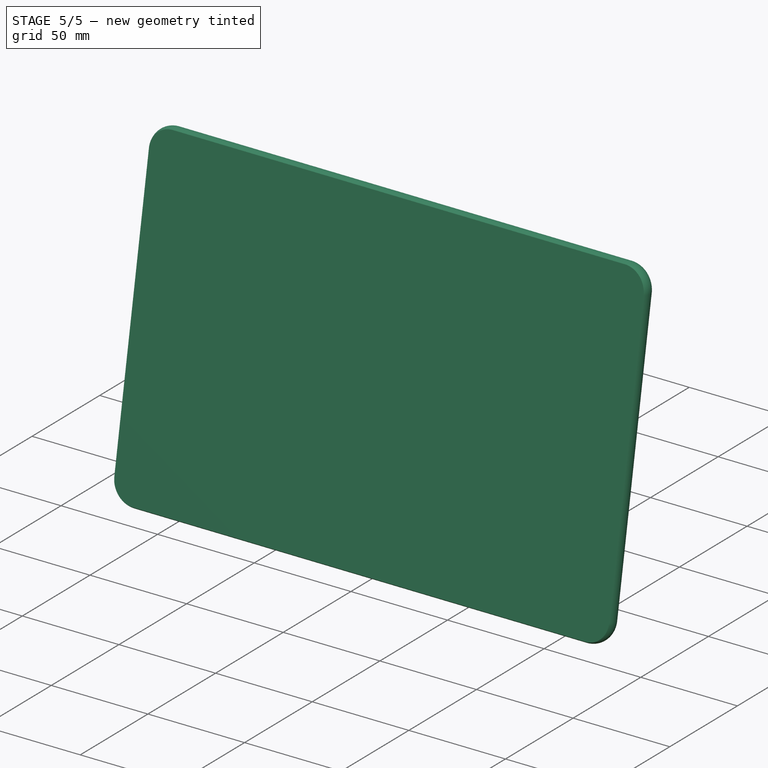
[diagram: stage 5 of 5 — iso view after this stage's code; geometry added in this stage tinted green]
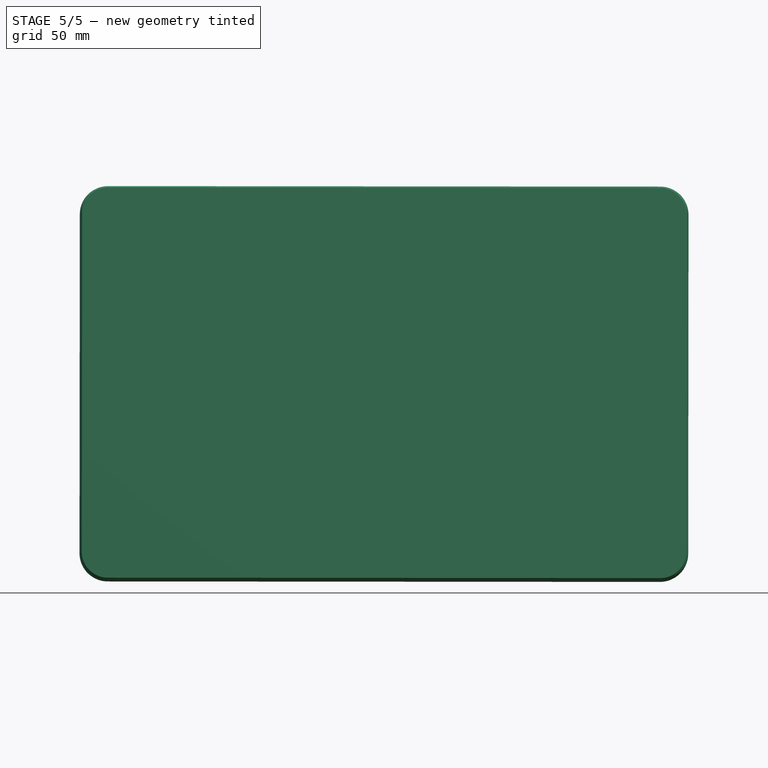
[diagram: stage 5 of 5 — front view after this stage's code; geometry added in this stage tinted green]
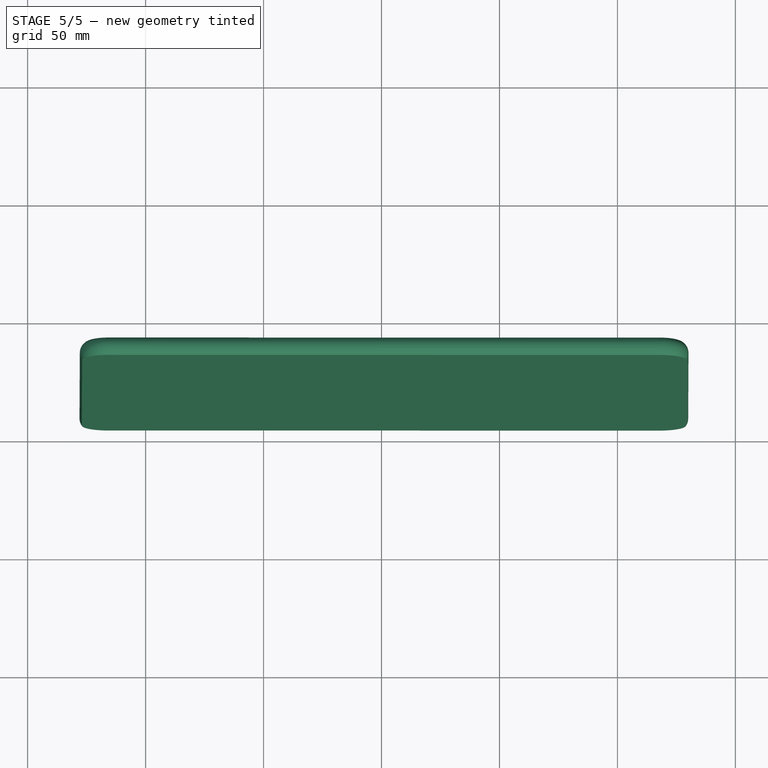
[diagram: stage 5 of 5 — top view after this stage's code; geometry added in this stage tinted green]
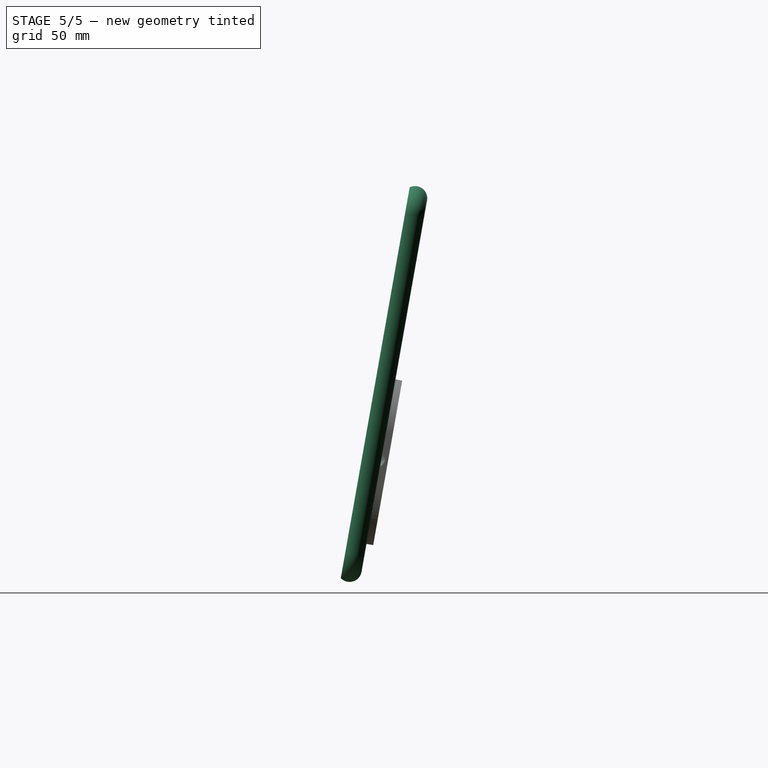
[diagram: stage 5 of 5 — right view after this stage's code; geometry added in this stage tinted green]
FEATURE [Part::FeaturePython] b_pixel_tablet_001_  label="pixel-tablet_001"  # a2plus imported part (geometry in sourceFile) (typed FeaturePython)
  Placement = pos=(1.05442,-30.7375,32.262) rot=(-0.999988,0.004927,-0.000431;0.174535rad)
  a2p_Version = 0.4.60n
  fixedPosition = true
  objectType = a2pPart
  sourceFile = ./pixel-tablet.FCStd
  subassemblyImport = false
  timeLastImport = 1.69159e+09
  updateColors = true
FEATURE [Sketcher::SketchObject] Sketch018
  ExternalGeometry = -> [ShapeBinder]
  FullyConstrained = true
  MapMode = 5
  Placement = pos=(-1.13e-14,-24.3979,4.28438) rot=(0,0.766044,0.642788;3.14159rad)
  Support = -> [Hole005]
  sketch-geometry (21):
    g0: GeomPoint X=0 Y=-33.5456 Z=0
    g1: LineSegment StartX=-47.55 StartY=-2.99564 StartZ=0 EndX=-47.55 EndY=-15.0956 EndZ=0
    g2: LineSegment StartX=-47.55 StartY=-15.0956 StartZ=0 EndX=-37.45 EndY=-15.0956 EndZ=0
    g3: LineSegment StartX=-37.45 StartY=-15.0956 StartZ=0 EndX=-37.45 EndY=-2.99564 EndZ=0
    g4: LineSegment StartX=-37.45 StartY=-2.99564 StartZ=0 EndX=-47.55 EndY=-2.99564 EndZ=0
    g5: GeomPoint X=-42.5 Y=-9.04564 Z=0
    g6: LineSegment StartX=-68.55 StartY=-0.995642 StartZ=0 EndX=-68.55 EndY=-11.0956 EndZ=0
    g7: LineSegment StartX=-68.55 StartY=-11.0956 StartZ=0 EndX=-56.45 EndY=-11.0956 EndZ=0
    g8: LineSegment StartX=-56.45 StartY=-11.0956 StartZ=0 EndX=-56.45 EndY=-0.995642 EndZ=0
    g9: LineSegment StartX=-56.45 StartY=-0.995642 StartZ=0 EndX=-68.55 EndY=-0.995642 EndZ=0
    g10: GeomPoint X=-62.5 Y=-6.04564 Z=0
    g11: LineSegment StartX=-33.55 StartY=14.7044 StartZ=0 EndX=-33.55 EndY=4.60436 EndZ=0
    g12: LineSegment StartX=-33.55 StartY=4.60436 StartZ=0 EndX=-21.45 EndY=4.60436 EndZ=0
    g13: LineSegment StartX=-21.45 StartY=4.60436 StartZ=0 EndX=-21.45 EndY=14.7044 EndZ=0
    g14: LineSegment StartX=-21.45 StartY=14.7044 StartZ=0 EndX=-33.55 EndY=14.7044 EndZ=0
    g15: GeomPoint X=-27.5 Y=9.65436 Z=0
    g16: LineSegment StartX=-55.05 StartY=17.5044 StartZ=0 EndX=-55.05 EndY=7.40436 EndZ=0
    g17: LineSegment StartX=-55.05 StartY=7.40436 StartZ=0 EndX=-42.95 EndY=7.40436 EndZ=0
    g18: LineSegment StartX=-42.95 StartY=7.40436 StartZ=0 EndX=-42.95 EndY=17.5044 EndZ=0
    g19: LineSegment StartX=-42.95 StartY=17.5044 StartZ=0 EndX=-55.05 EndY=17.5044 EndZ=0
    g20: GeomPoint X=-49 Y=12.4544 Z=0
  constraints (54):
    c: PointOnObject(g0,g-2)
    c: DistanceY(g-3,g0) = 10
    c: Coincident(g1,g2)
    c: Coincident(g2,g3)
    c: Coincident(g3,g4)
    c: Coincident(g4,g1)
    c: Horizontal(g2)
    c: Horizontal(g4)
    c: Vertical(g1)
    c: Vertical(g3)
    c: Symmetric(g2,g1,g5)
    c: Coincident(g6,g7)
    c: Coincident(g7,g8)
    c: Coincident(g8,g9)
    c: Coincident(g9,g6)
    c: Horizontal(g7)
    c: Horizontal(g9)
    c: Vertical(g6)
    c: Vertical(g8)
    c: Symmetric(g7,g6,g10)
    c: Coincident(g11,g12)
    c: Coincident(g12,g13)
    c: Coincident(g13,g14)
    c: Coincident(g14,g11)
    c: Horizontal(g12)
    c: Horizontal(g14)
    c: Vertical(g11)
    c: Vertical(g13)
    c: Symmetric(g12,g11,g15)
    c: Coincident(g16,g17)
    c: Coincident(g17,g18)
    c: Coincident(g18,g19)
    c: Coincident(g19,g16)
    c: Horizontal(g17)
    c: Horizontal(g19)
    c: Vertical(g16)
    c: Vertical(g18)
    c: Symmetric(g17,g16,g20)
    c: Equal(g1,g7)
    c: Equal(g7,g17)
    c: Equal(g17,g12)
    c: Equal(g18,g8)
    c: Equal(g8,g11)
    c: Equal(g11,g4)
    c: DistanceY(g1,g1) = 12.1
    c: DistanceX(g4,g4) = 10.1
    c: DistanceY(g0,g5) = 24.5
    c: DistanceX(g5,g0) = 42.5
    c: DistanceX(g10,g0) = 62.5
    c: DistanceY(g0,g10) = 27.5
    c: DistanceY(g0,g15) = 43.2
    c: DistanceX(g15,g0) = 27.5
    c: DistanceY(g0,g20) = 46
    c: DistanceX(g20,g0) = 49
FEATURE [PartDesign::Pocket] Pocket004
  BaseFeature = -> Hole005
  Direction = (-5e-16,-0.984808,0.173648)
  Length = 0
  Length2 = 5
  Offset = -0.2
  Placement = pos=(0,-0.1,0) rot=(0,0,1;0rad)
  Profile = -> Sketch018
  ReferenceAxis = -> Sketch018 [N_Axis]
  Type = 3
  UpToFace = -> Hole005 [Face5]
FEATURE [Sketcher::SketchObject] Sketch
  ExternalGeometry = -> [ShapeBinder]
  FullyConstrained = true
  MapMode = 5
  Placement = pos=(-1.13e-14,-24.3979,4.28438) rot=(0,0.766044,0.642788;3.14159rad)
  Support = -> [Pocket004]
  sketch-geometry (2):
    g0: Circle CenterX=-2.6 CenterY=-33.5456 CenterZ=0 NormalX=0 NormalY=0 NormalZ=1 AngleXU=0 Radius=1.5
    g1: Circle CenterX=-7.8 CenterY=-33.5456 CenterZ=0 NormalX=0 NormalY=0 NormalZ=1 AngleXU=0 Radius=1.5
  constraints (6):
    c: Horizontal(g1,g0)
    c: DistanceX(g1,g0) = 5.2
    c: DistanceX(g0,g-1) = 2.6
    c: DistanceY(g-3,g0) = 10
    c: Equal(g1,g0)
    c: Diameter(g1) = 3
FEATURE [PartDesign::Pocket] Pocket005
  BaseFeature = -> Pocket004
  Direction = (-5e-16,-0.984808,0.173648)
  Length = 5
  Length2 = 5
  Placement = pos=(0,-0.1,0) rot=(0,0,1;0rad)
  Profile = -> Sketch
  ReferenceAxis = -> Sketch [N_Axis]
  Type = 1
FEATURE [PartDesign::Mirrored] Mirrored
  BaseFeature = -> Pocket005
  MirrorPlane = -> Pocket005 [Face11]
  Originals = -> [Pad004,Hole005,Pocket004,Pocket005]
  Placement = pos=(0,-0.1,0) rot=(0,0,1;0rad)
  Refine = true
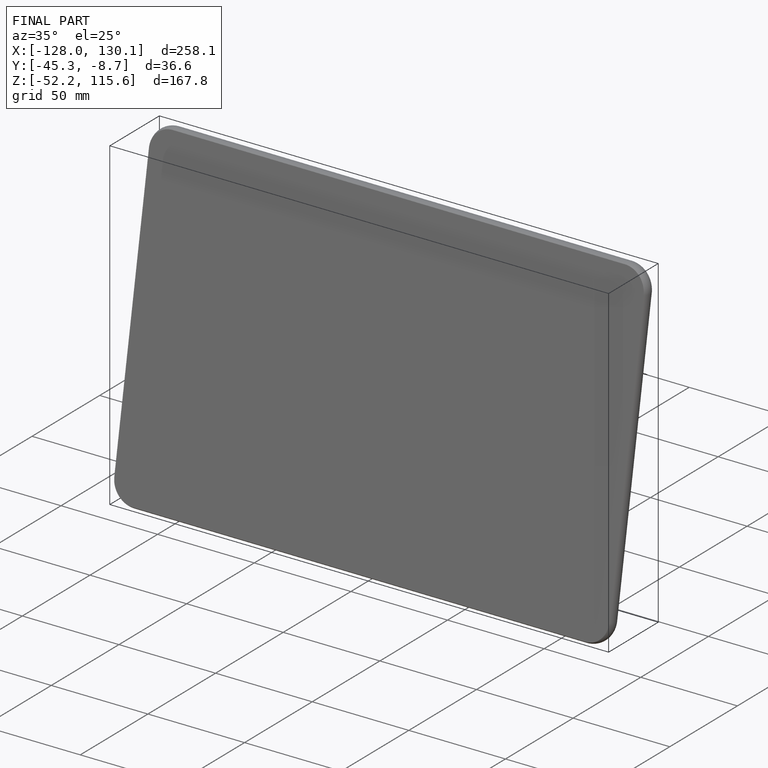
[diagram: finished part — iso view with bounding-box wireframe]
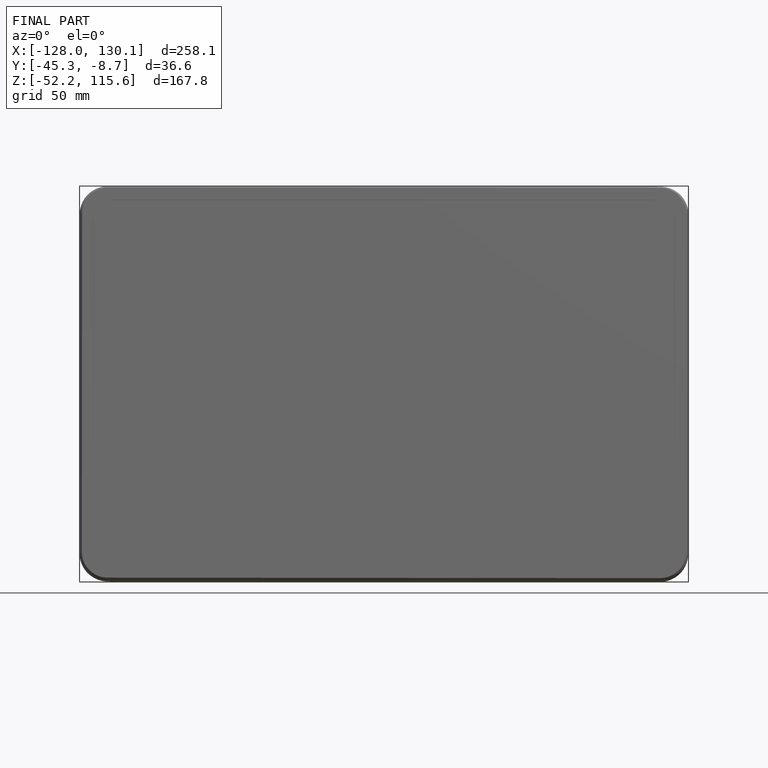
[diagram: finished part — front view with bounding-box wireframe]
